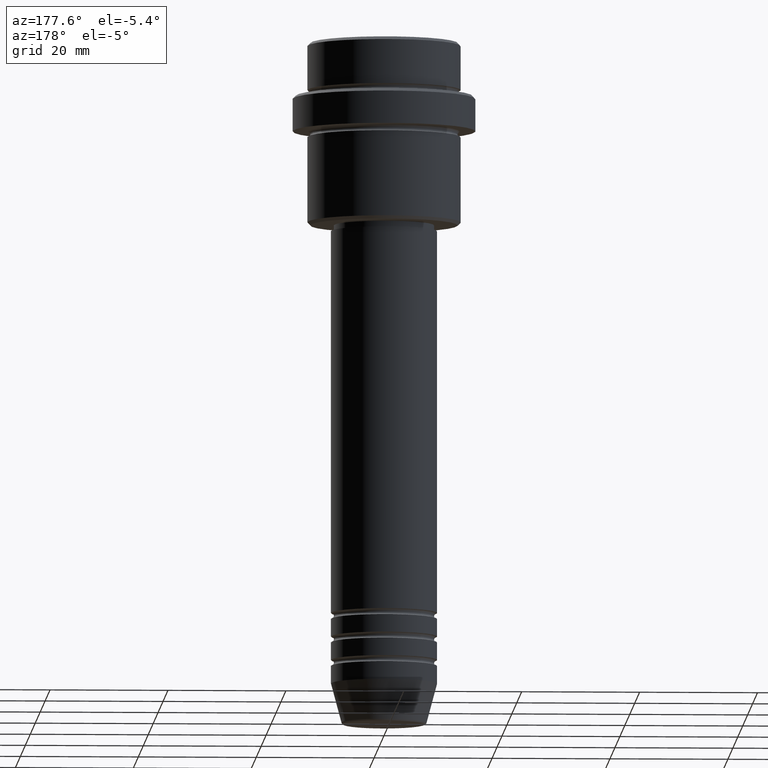
[diagram: clean part render]
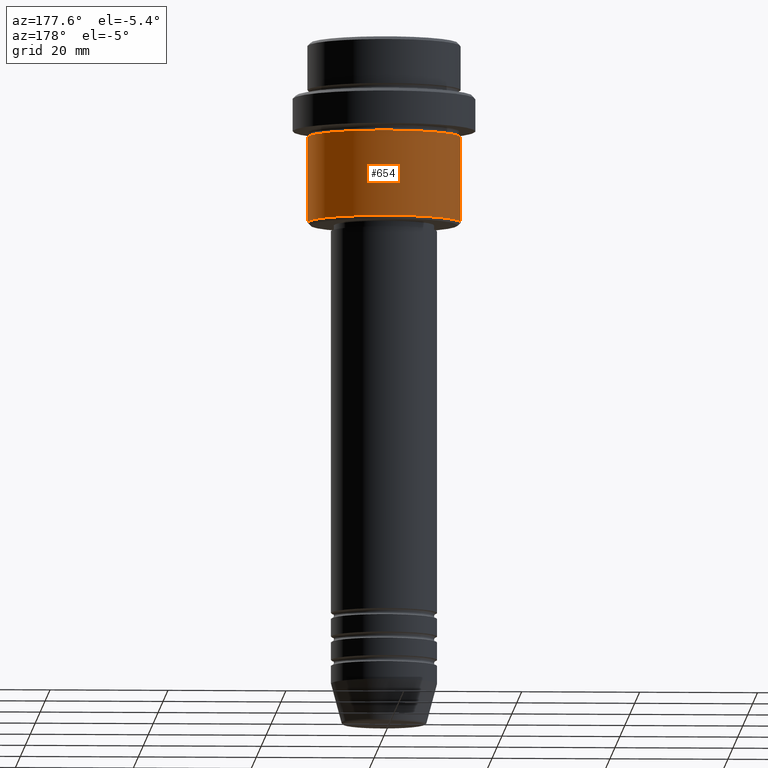
[diagram: same view with one face highlighted and labeled with its STEP entity id]
A machine part, auxiliary view. The second image highlights one B-rep face of the part: STEP entity #654.
In plain terms, the highlighted cylindrical surface (partial cylindrical patch) has radius 13 mm, axis along (-0, -0, 1).
Its self-contained STEP definition (entity closure, byte-faithful):
#35 = CIRCLE ( 'NONE', #220, 13.00000000000000000 ) ;
#87 = VERTEX_POINT ( 'NONE', #1238 ) ;
#88 = CARTESIAN_POINT ( 'NONE',  ( 13.00000000000000000, 0.000000000000000000, -16.00000000000000000 ) ) ;
#94 = ORIENTED_EDGE ( 'NONE', *, *, #998, .T. ) ;
#117 = CARTESIAN_POINT ( 'NONE',  ( -13.00000000000000000, 1.592040838891559095E-15, -16.00000000000000000 ) ) ;
#126 = LINE ( 'NONE', #570, #1236 ) ;
#173 = AXIS2_PLACEMENT_3D ( 'NONE', #692, #481, #1123 ) ;
#213 = DIRECTION ( 'NONE',  ( 1.000000000000000000, 0.000000000000000000, 0.000000000000000000 ) ) ;
#220 = AXIS2_PLACEMENT_3D ( 'NONE', #1300, #774, #213 ) ;
#271 = VERTEX_POINT ( 'NONE', #117 ) ;
#308 = ORIENTED_EDGE ( 'NONE', *, *, #771, .F. ) ;
#422 = DIRECTION ( 'NONE',  ( -0.000000000000000000, -0.000000000000000000, 1.000000000000000000 ) ) ;
#434 = LINE ( 'NONE', #1073, #1102 ) ;
#481 = DIRECTION ( 'NONE',  ( -0.000000000000000000, -0.000000000000000000, 1.000000000000000000 ) ) ;
#570 = CARTESIAN_POINT ( 'NONE',  ( -13.00000000000000000, 1.592040838891559095E-15, 0.000000000000000000 ) ) ;
#608 = EDGE_CURVE ( 'NONE', #87, #1204, #1335, .T. ) ;
#621 = DIRECTION ( 'NONE',  ( 1.000000000000000000, 0.000000000000000000, 0.000000000000000000 ) ) ;
#628 = CARTESIAN_POINT ( 'NONE',  ( 0.000000000000000000, 0.000000000000000000, 0.000000000000000000 ) ) ;
#634 = CYLINDRICAL_SURFACE ( 'NONE', #1013, 13.00000000000000000 ) ;
#654 = ADVANCED_FACE ( 'NONE', ( #1365 ), #634, .T. ) ;
#692 = CARTESIAN_POINT ( 'NONE',  ( 0.000000000000000000, 0.000000000000000000, -30.50000000000000355 ) ) ;
#720 = ORIENTED_EDGE ( 'NONE', *, *, #608, .T. ) ;
#722 = CARTESIAN_POINT ( 'NONE',  ( -13.00000000000000000, 1.592040838891559095E-15, -30.50000000000000355 ) ) ;
#771 = EDGE_CURVE ( 'NONE', #87, #1259, #434, .T. ) ;
#774 = DIRECTION ( 'NONE',  ( -0.000000000000000000, -0.000000000000000000, 1.000000000000000000 ) ) ;
#924 = ORIENTED_EDGE ( 'NONE', *, *, #951, .F. ) ;
#951 = EDGE_CURVE ( 'NONE', #1259, #271, #35, .T. ) ;
#996 = DIRECTION ( 'NONE',  ( -0.000000000000000000, -0.000000000000000000, 1.000000000000000000 ) ) ;
#998 = EDGE_CURVE ( 'NONE', #1204, #271, #126, .T. ) ;
#1013 = AXIS2_PLACEMENT_3D ( 'NONE', #628, #1286, #621 ) ;
#1073 = CARTESIAN_POINT ( 'NONE',  ( 13.00000000000000000, 0.000000000000000000, 0.000000000000000000 ) ) ;
#1102 = VECTOR ( 'NONE', #422, 1000.000000000000000 ) ;
#1123 = DIRECTION ( 'NONE',  ( -1.000000000000000000, 0.000000000000000000, 0.000000000000000000 ) ) ;
#1204 = VERTEX_POINT ( 'NONE', #722 ) ;
#1236 = VECTOR ( 'NONE', #996, 1000.000000000000000 ) ;
#1238 = CARTESIAN_POINT ( 'NONE',  ( 13.00000000000000000, 0.000000000000000000, -30.50000000000000355 ) ) ;
#1259 = VERTEX_POINT ( 'NONE', #88 ) ;
#1286 = DIRECTION ( 'NONE',  ( -0.000000000000000000, -0.000000000000000000, 1.000000000000000000 ) ) ;
#1300 = CARTESIAN_POINT ( 'NONE',  ( 0.000000000000000000, 0.000000000000000000, -16.00000000000000000 ) ) ;
#1317 = EDGE_LOOP ( 'NONE', ( #720, #94, #924, #308 ) ) ;
#1335 = CIRCLE ( 'NONE', #173, 13.00000000000000000 ) ;
#1365 = FACE_OUTER_BOUND ( 'NONE', #1317, .T. ) ;